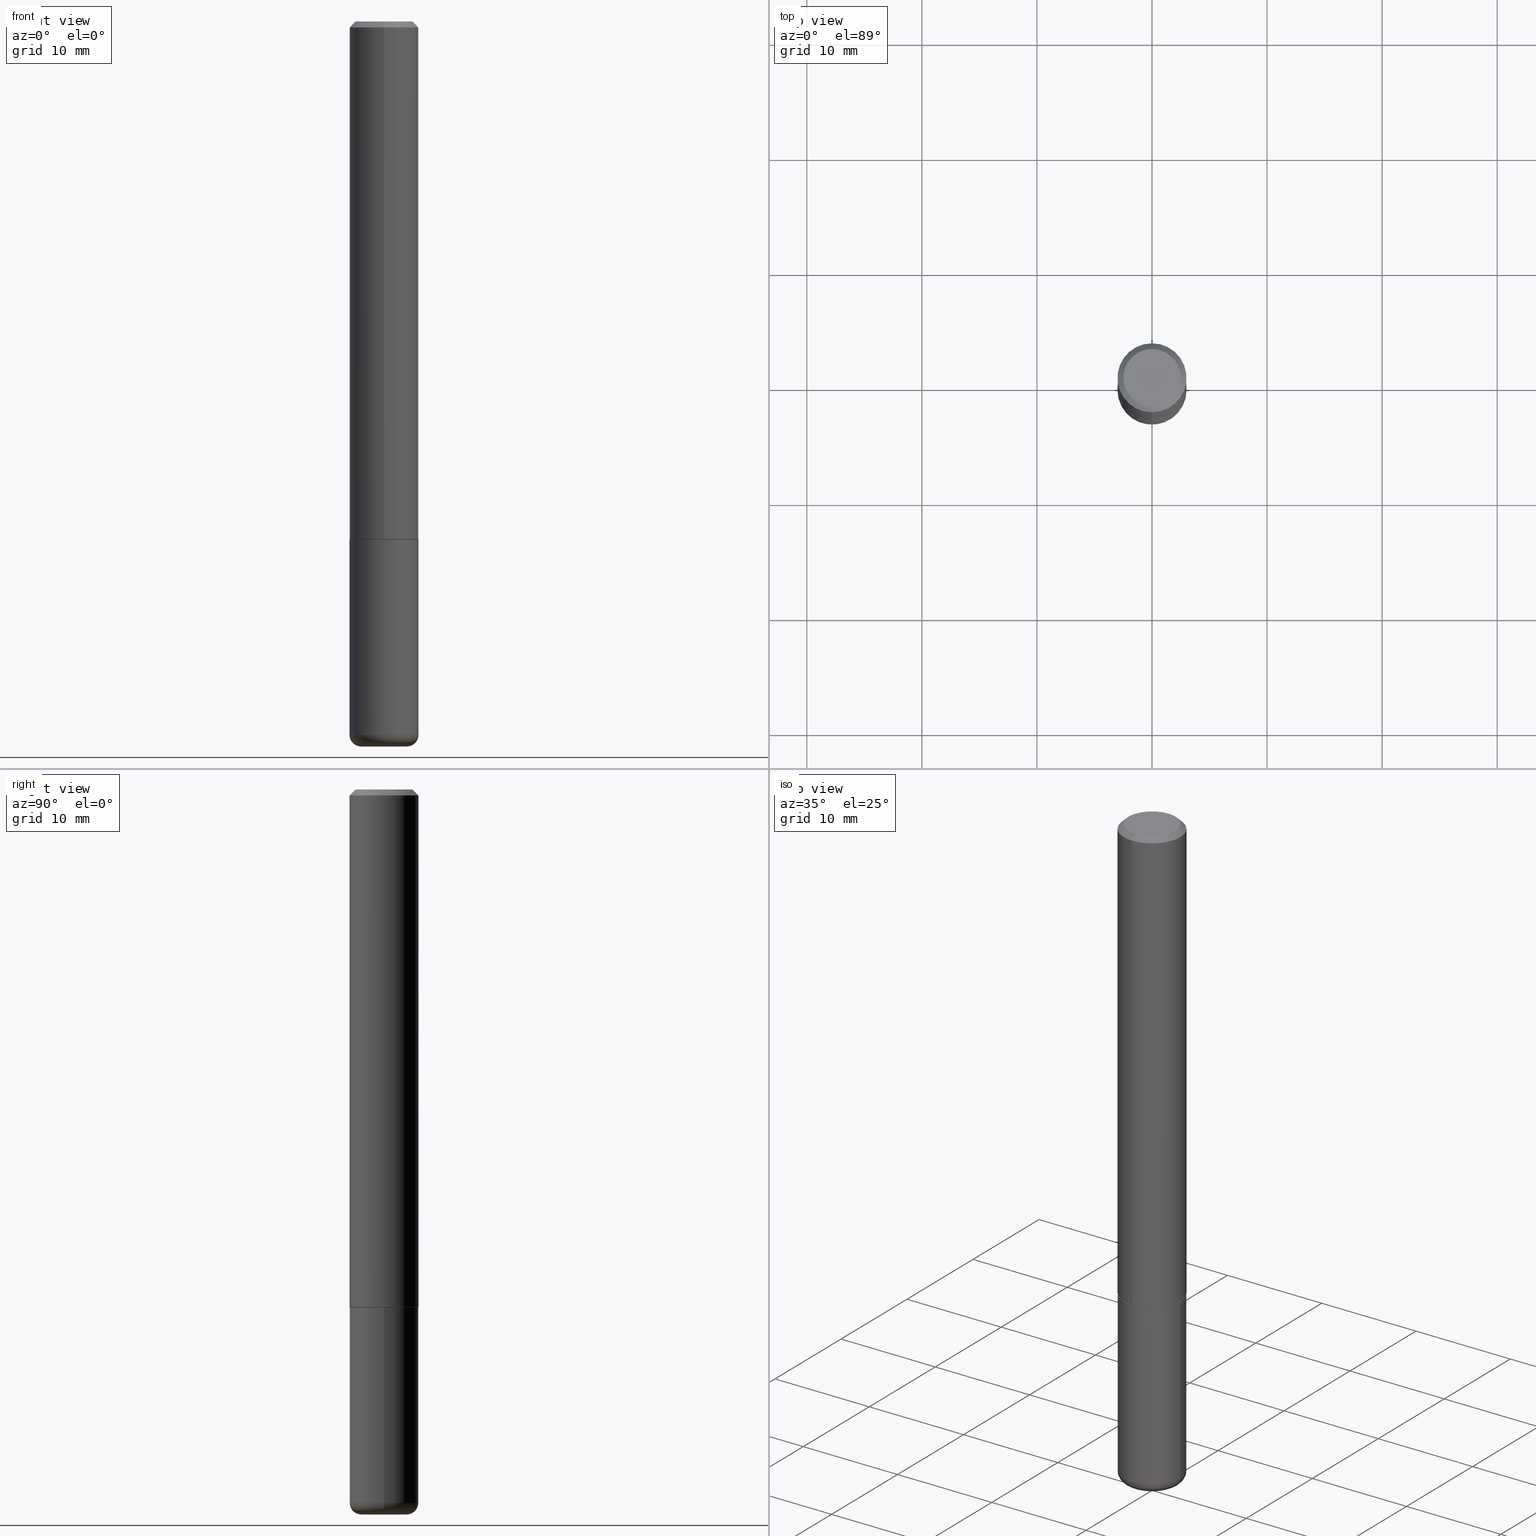
[diagram: canonical four-view strip — front | top / right | iso, engineering-drawing reading convention]
A machine part, canonical four-view strip (front | top / right | iso — engineering-drawing reading convention). The complete STEP part file that produces these views, byte-faithful:
ISO-10303-21;
HEADER;
FILE_DESCRIPTION (( 'STEP AP203' ),
    '1' );
FILE_NAME ('47489.STEP',
    '2024-03-06T02:46:05',
    ( '' ),
    ( '' ),
    'SwSTEP 2.0',
    'SolidWorks 2023',
    '' );
FILE_SCHEMA (( 'CONFIG_CONTROL_DESIGN' ));
ENDSEC;

DATA;
#1 = ORIENTED_EDGE ( 'NONE', *, *, #328, .F. ) ;
#2 = DIRECTION ( 'NONE',  ( -6.982962677686265922E-15, -1.000000000000000000, 3.494674881071397310E-15 ) ) ;
#3 = LOCAL_TIME ( 21, 46, 5.000000000000000000, #287 ) ;
#4 = PERSON_AND_ORGANIZATION_ROLE ( 'creator' ) ;
#5 = CC_DESIGN_PERSON_AND_ORGANIZATION_ASSIGNMENT ( #330, #389, ( #85 ) ) ;
#6 = ORIENTED_EDGE ( 'NONE', *, *, #261, .F. ) ;
#7 = APPROVAL_ROLE ( '' ) ;
#8 = ORIENTED_EDGE ( 'NONE', *, *, #40, .T. ) ;
#9 = CALENDAR_DATE ( 2024, 5, 3 ) ;
#10 = PERSON_AND_ORGANIZATION ( #194, #288 ) ;
#11 = DIRECTION ( 'NONE',  ( -2.445468806185136597E-29, 3.491481338843145583E-15, 1.000000000000000000 ) ) ;
#12 = VERTEX_POINT ( 'NONE', #374 ) ;
#13 = EDGE_CURVE ( 'NONE', #284, #355, #306, .T. ) ;
#14 = CARTESIAN_POINT ( 'NONE',  ( -7.416198335591014190E-16, -0.09809999999999975684, 6.035201542218197439E-16 ) ) ;
#15 = LOCAL_TIME ( 21, 46, 5.000000000000000000, #137 ) ;
#16 = LINE ( 'NONE', #91, #412 ) ;
#17 = APPROVAL ( #231, 'UNSPECIFIED' ) ;
#18 = EDGE_LOOP ( 'NONE', ( #172, #405, #148, #22 ) ) ;
#19 = CARTESIAN_POINT ( 'NONE',  ( 6.850286386810209760E-16, 0.09809999999999975684, -2.124813316387448711E-16 ) ) ;
#20 = CIRCLE ( 'NONE', #371, 0.1180999999999999966 ) ;
#21 = VECTOR ( 'NONE', #81, 39.37007874015748143 ) ;
#22 = ORIENTED_EDGE ( 'NONE', *, *, #60, .F. ) ;
#23 = DIRECTION ( 'NONE',  ( 4.937700262164540942E-15, 0.7071067811865441310, -0.7071067811865509034 ) ) ;
#24 = FACE_OUTER_BOUND ( 'NONE', #18, .T. ) ;
#25 = EDGE_CURVE ( 'NONE', #336, #340, #206, .T. ) ;
#26 = APPLICATION_PROTOCOL_DEFINITION ( 'international standard', 'config_control_design', 1994, #62 ) ;
#27 = DIRECTION ( 'NONE',  ( -4.937700262164969294E-15, -0.7071067811866054154, 0.7071067811864896191 ) ) ;
#28 = AXIS2_PLACEMENT_3D ( 'NONE', #98, #254, #279 ) ;
#29 = LOCAL_TIME ( 21, 46, 5.000000000000000000, #200 ) ;
#30 = CARTESIAN_POINT ( 'NONE',  ( -8.177049295570184665E-16, -0.1171000000000061991, -1.771600000000000064 ) ) ;
#31 = EDGE_LOOP ( 'NONE', ( #299, #144 ) ) ;
#32 =( NAMED_UNIT ( * ) PLANE_ANGLE_UNIT ( ) SI_UNIT ( $, .RADIAN. ) );
#33 = DIRECTION ( 'NONE',  ( -4.851104656540957175E-15, -0.7071067811865490160, -0.7071067811865460184 ) ) ;
#34 = ORIENTED_EDGE ( 'NONE', *, *, #391, .T. ) ;
#35 = PERSON_AND_ORGANIZATION ( #194, #288 ) ;
#36 = DIRECTION ( 'NONE',  ( 6.982962677686265922E-15, 1.000000000000000000, -3.505890868245046092E-15 ) ) ;
#37 = AXIS2_PLACEMENT_3D ( 'NONE', #377, #314, #159 ) ;
#38 = ORIENTED_EDGE ( 'NONE', *, *, #246, .T. ) ;
#39 = APPROVAL_DATE_TIME ( #232, #363 ) ;
#40 = EDGE_CURVE ( 'NONE', #163, #110, #16, .T. ) ;
#41 = ORIENTED_EDGE ( 'NONE', *, *, #347, .T. ) ;
#42 = EDGE_CURVE ( 'NONE', #199, #50, #121, .T. ) ;
#43 = AXIS2_PLACEMENT_3D ( 'NONE', #376, #88, #401 ) ;
#44 = AXIS2_PLACEMENT_3D ( 'NONE', #19, #113, #307 ) ;
#45 = CYLINDRICAL_SURFACE ( 'NONE', #103, 0.1180999999999999966 ) ;
#46 = EDGE_LOOP ( 'NONE', ( #107, #203 ) ) ;
#47 = ORIENTED_EDGE ( 'NONE', *, *, #60, .T. ) ;
#48 = APPLICATION_CONTEXT ( 'configuration controlled 3d designs of mechanical parts and assemblies' ) ;
#49 = DIRECTION ( 'NONE',  ( 1.000000000000000000, -6.982962677686266711E-15, 4.876176775795936353E-29 ) ) ;
#50 = VERTEX_POINT ( 'NONE', #205 ) ;
#51 = FACE_OUTER_BOUND ( 'NONE', #342, .T. ) ;
#52 = ORIENTED_EDGE ( 'NONE', *, *, #183, .T. ) ;
#53 = LINE ( 'NONE', #277, #404 ) ;
#54 = ORIENTED_EDGE ( 'NONE', *, *, #69, .T. ) ;
#55 = AXIS2_PLACEMENT_3D ( 'NONE', #191, #383, #106 ) ;
#56 = ORIENTED_EDGE ( 'NONE', *, *, #250, .T. ) ;
#57 = ADVANCED_FACE ( 'NONE', ( #271 ), #152, .T. ) ;
#58 = DIRECTION ( 'NONE',  ( -6.982962677686265922E-15, -1.000000000000000000, 2.332918867347791121E-15 ) ) ;
#59 = LINE ( 'NONE', #30, #378 ) ;
#60 = EDGE_CURVE ( 'NONE', #336, #355, #310, .T. ) ;
#61 = CARTESIAN_POINT ( 'NONE',  ( 4.325998561852691348E-29, -6.187671344425017014E-15, -1.770600000000000174 ) ) ;
#62 = APPLICATION_CONTEXT ( 'configuration controlled 3d designs of mechanical parts and assemblies' ) ;
#63 = ORIENTED_EDGE ( 'NONE', *, *, #370, .T. ) ;
#64 = LINE ( 'NONE', #387, #202 ) ;
#65 = CARTESIAN_POINT ( 'NONE',  ( 0.1180999999999999966, -7.010196232129265043E-15, -1.771600000000000286 ) ) ;
#66 = PRODUCT_DEFINITION_SHAPE ( 'NONE', 'NONE',  #96 ) ;
#67 = APPROVAL_DATE_TIME ( #260, #17 ) ;
#68 = CARTESIAN_POINT ( 'NONE',  ( 4.886477535132384121E-31, -6.989349762142808870E-17, -0.02000000000000004205 ) ) ;
#69 = EDGE_CURVE ( 'NONE', #355, #110, #20, .T. ) ;
#70 = CALENDAR_DATE ( 2024, 5, 3 ) ;
#71 = VECTOR ( 'NONE', #33, 39.37007874015748143 ) ;
#72 = ORIENTED_EDGE ( 'NONE', *, *, #321, .T. ) ;
#73 = PERSON_AND_ORGANIZATION ( #194, #288 ) ;
#74 = PERSON_AND_ORGANIZATION ( #194, #288 ) ;
#75 = APPROVAL_DATE_TIME ( #395, #341 ) ;
#76 = CIRCLE ( 'NONE', #55, 0.03940000000000005997 ) ;
#77 = EDGE_LOOP ( 'NONE', ( #167, #181 ) ) ;
#78 = CC_DESIGN_PERSON_AND_ORGANIZATION_ASSIGNMENT ( #35, #4, ( #96 ) ) ;
#79 = CARTESIAN_POINT ( 'NONE',  ( 5.969144809017300159E-29, -8.522356799982234543E-15, -2.440900000000000070 ) ) ;
#80 = CARTESIAN_POINT ( 'NONE',  ( -0.07870000000000000606, -7.891964930369505262E-15, -2.480300000000000171 ) ) ;
#81 = DIRECTION ( 'NONE',  ( 5.024295867788490741E-15, 0.7071067811866103003, 0.7071067811864847341 ) ) ;
#82 = DIRECTION ( 'NONE',  ( -6.982962677686265922E-15, -1.000000000000000000, 3.494674881071397705E-15 ) ) ;
#83 = AXIS2_PLACEMENT_3D ( 'NONE', #61, #317, #280 ) ;
#84 = FACE_OUTER_BOUND ( 'NONE', #178, .T. ) ;
#85 = PRODUCT_DEFINITION_FORMATION_WITH_SPECIFIED_SOURCE ( 'ANY', '', #119, .NOT_KNOWN. ) ;
#86 = VERTEX_POINT ( 'NONE', #156 ) ;
#87 = DIRECTION ( 'NONE',  ( 1.000000000000000000, -6.982962677686265133E-15, 0.000000000000000000 ) ) ;
#88 = DIRECTION ( 'NONE',  ( -2.443238767566187138E-29, 3.494674881071396916E-15, 1.000000000000000000 ) ) ;
#89 = MANIFOLD_SOLID_BREP ( 'Body-Move/Copy2[2]', #249 ) ;
#90 = CARTESIAN_POINT ( 'NONE',  ( 7.548582654578847672E-16, 0.09809999999999975684, -8.213505744438662948E-17 ) ) ;
#91 = CARTESIAN_POINT ( 'NONE',  ( -8.246878922347488542E-16, -0.1181000000000001215, 4.127211034545323724E-16 ) ) ;
#92 = ADVANCED_FACE ( 'NONE', ( #402 ), #398, .T. ) ;
#93 = CONICAL_SURFACE ( 'NONE', #212, 0.1180999999999999966, 0.7853981633974469467 ) ;
#94 = AXIS2_PLACEMENT_3D ( 'NONE', #322, #357, #349 ) ;
#95 = CARTESIAN_POINT ( 'NONE',  ( -8.177049295570184665E-16, -0.1171000000000061991, -1.771600000000000064 ) ) ;
#96 = PRODUCT_DEFINITION ( 'UNKNOWN', '', #85, #237 ) ;
#97 = DIRECTION ( 'NONE',  ( -2.445468806185136597E-29, 3.491481338843145583E-15, 1.000000000000000000 ) ) ;
#98 = CARTESIAN_POINT ( 'NONE',  ( 4.325998561852691348E-29, -6.187671344425017014E-15, -1.770600000000000174 ) ) ;
#99 = PLANE ( 'NONE',  #44 ) ;
#100 = VERTEX_POINT ( 'NONE', #80 ) ;
#101 = DIRECTION ( 'NONE',  ( -6.982962677686265922E-15, -1.000000000000000000, 2.332918867347791121E-15 ) ) ;
#102 = DIRECTION ( 'NONE',  ( 1.000000000000000000, -6.982962677686269077E-15, 4.883557194083113462E-29 ) ) ;
#103 = AXIS2_PLACEMENT_3D ( 'NONE', #171, #11, #49 ) ;
#104 = EDGE_LOOP ( 'NONE', ( #318, #52, #8, #302 ) ) ;
#105 = LENGTH_MEASURE_WITH_UNIT ( LENGTH_MEASURE( 0.02539999999999999897 ), #182 );
#106 = DIRECTION ( 'NONE',  ( 1.000000000000000000, -6.982962677686267499E-15, 0.000000000000000000 ) ) ;
#107 = ORIENTED_EDGE ( 'NONE', *, *, #42, .T. ) ;
#108 = DATE_TIME_ROLE ( 'classification_date' ) ;
#109 = ORIENTED_EDGE ( 'NONE', *, *, #234, .F. ) ;
#110 = VERTEX_POINT ( 'NONE', #211 ) ;
#111 = DATE_AND_TIME ( #298, #29 ) ;
#112 = CONICAL_SURFACE ( 'NONE', #198, 0.1180999999999999966, 0.7853981633974469467 ) ;
#113 = DIRECTION ( 'NONE',  ( 2.443238767566186578E-29, -3.494674881071397310E-15, -1.000000000000000000 ) ) ;
#114 = CARTESIAN_POINT ( 'NONE',  ( 0.000000000000000000, 0.000000000000000000, 0.000000000000000000 ) ) ;
#115 = ADVANCED_FACE ( 'NONE', ( #208 ), #278, .T. ) ;
#116 = DIRECTION ( 'NONE',  ( -6.982962677686265922E-15, -1.000000000000000000, 2.332918867347791121E-15 ) ) ;
#117 = DIMENSIONAL_EXPONENTS ( 1.000000000000000000, 0.000000000000000000, 0.000000000000000000, 0.000000000000000000, 0.000000000000000000, 0.000000000000000000, 0.000000000000000000 ) ;
#118 = DIRECTION ( 'NONE',  ( -2.443238767566187138E-29, 3.494674881071396916E-15, 1.000000000000000000 ) ) ;
#119 = PRODUCT ( '47489', '47489', '', ( #227 ) ) ;
#120 = CARTESIAN_POINT ( 'NONE',  ( -6.369341406389364514E-45, 9.110357005365375257E-31, 2.606925483887165818E-16 ) ) ;
#121 = CIRCLE ( 'NONE', #256, 0.1180999999999999966 ) ;
#122 = CIRCLE ( 'NONE', #175, 0.1170999999999999958 ) ;
#123 = SECURITY_CLASSIFICATION ( '', '', #364 ) ;
#124 = DIRECTION ( 'NONE',  ( -2.443238767566187138E-29, 3.494674881071397310E-15, 1.000000000000000000 ) ) ;
#125 = ORIENTED_EDGE ( 'NONE', *, *, #321, .F. ) ;
#126 = DIRECTION ( 'NONE',  ( -2.443238767566187138E-29, 3.494674881071396916E-15, 1.000000000000000000 ) ) ;
#127 = CARTESIAN_POINT ( 'NONE',  ( -0.1181000000000000383, -7.683205829049555557E-15, -2.440900000000000070 ) ) ;
#128 = PRODUCT_RELATED_PRODUCT_CATEGORY ( 'detail', '', ( #119 ) ) ;
#129 = CIRCLE ( 'NONE', #174, 0.03940000000000005997 ) ;
#130 = AXIS2_PLACEMENT_3D ( 'NONE', #304, #339, #151 ) ;
#131 = DIRECTION ( 'NONE',  ( 6.982962677686265922E-15, 1.000000000000000000, -3.505890868245046092E-15 ) ) ;
#132 = CARTESIAN_POINT ( 'NONE',  ( 4.328441800620257960E-29, -6.191166019306087880E-15, -1.771600000000000286 ) ) ;
#133 = DIRECTION ( 'NONE',  ( 2.438088387897960049E-29, -3.491481338843145188E-15, -1.000000000000000000 ) ) ;
#134 = DIRECTION ( 'NONE',  ( -1.000000000000000000, 7.105427357600990815E-15, 0.000000000000000000 ) ) ;
#135 = AXIS2_PLACEMENT_3D ( 'NONE', #409, #283, #58 ) ;
#136 = ORIENTED_EDGE ( 'NONE', *, *, #410, .T. ) ;
#137 = COORDINATED_UNIVERSAL_TIME_OFFSET ( 5, 0, .BEHIND. ) ;
#138 = ORIENTED_EDGE ( 'NONE', *, *, #186, .F. ) ;
#139 = APPLICATION_PROTOCOL_DEFINITION ( 'international standard', 'config_control_design', 1994, #48 ) ;
#140 = CIRCLE ( 'NONE', #37, 0.09809999999999975684 ) ;
#141 = DIRECTION ( 'NONE',  ( 1.000000000000000000, 0.000000000000000000, 0.000000000000000000 ) ) ;
#142 = APPROVAL_STATUS ( 'not_yet_approved' ) ;
#143 = PLANE ( 'NONE',  #362 ) ;
#144 = ORIENTED_EDGE ( 'NONE', *, *, #269, .T. ) ;
#145 = ADVANCED_FACE ( 'NONE', ( #24 ), #93, .T. ) ;
#146 = LOCAL_TIME ( 21, 46, 5.000000000000000000, #170 ) ;
#147 = DIRECTION ( 'NONE',  ( -2.443238767566187138E-29, 3.494674881071396916E-15, 1.000000000000000000 ) ) ;
#148 = ORIENTED_EDGE ( 'NONE', *, *, #234, .T. ) ;
#149 = EDGE_CURVE ( 'NONE', #100, #274, #129, .T. ) ;
#150 = CARTESIAN_POINT ( 'NONE',  ( 4.886477535132384121E-31, -6.989349762142808870E-17, -0.02000000000000004205 ) ) ;
#151 = DIRECTION ( 'NONE',  ( 1.000000000000000000, -6.982962677686269077E-15, 4.883557194083113462E-29 ) ) ;
#152 = CYLINDRICAL_SURFACE ( 'NONE', #43, 0.1181000000000001215 ) ;
#153 = AXIS2_PLACEMENT_3D ( 'NONE', #365, #266, #397 ) ;
#154 = DIRECTION ( 'NONE',  ( -2.445468806185136597E-29, 3.491481338843145583E-15, 1.000000000000000000 ) ) ;
#155 = DIRECTION ( 'NONE',  ( -2.443238767566187138E-29, 3.494674881071397310E-15, 1.000000000000000000 ) ) ;
#156 = CARTESIAN_POINT ( 'NONE',  ( 0.07870000000000000606, -9.209480327466565169E-15, -2.480300000000000171 ) ) ;
#157 = DIRECTION ( 'NONE',  ( -2.443238767566187138E-29, 3.494674881071396916E-15, 1.000000000000000000 ) ) ;
#158 = TOROIDAL_SURFACE ( 'NONE', #346, 0.07870000000000000606, 0.03940000000000005997 ) ;
#159 = DIRECTION ( 'NONE',  ( -6.982962677686265922E-15, -1.000000000000000000, 3.494674881071397705E-15 ) ) ;
#160 = CARTESIAN_POINT ( 'NONE',  ( 4.328441800620257960E-29, -6.191166019306087880E-15, -1.771600000000000286 ) ) ;
#161 = LINE ( 'NONE', #319, #71 ) ;
#162 = CARTESIAN_POINT ( 'NONE',  ( 4.328441800620257960E-29, -6.191166019306087880E-15, -1.771600000000000286 ) ) ;
#163 = VERTEX_POINT ( 'NONE', #195 ) ;
#164 = PERSON_AND_ORGANIZATION ( #194, #288 ) ;
#165 = AXIS2_PLACEMENT_3D ( 'NONE', #216, #157, #222 ) ;
#166 = SHAPE_DEFINITION_REPRESENTATION ( #66, #233 ) ;
#167 = ORIENTED_EDGE ( 'NONE', *, *, #246, .F. ) ;
#168 = DATE_AND_TIME ( #224, #146 ) ;
#169 = CONICAL_SURFACE ( 'NONE', #413, 0.1170999999999999958, 0.7853981633975336552 ) ;
#170 = COORDINATED_UNIVERSAL_TIME_OFFSET ( 5, 0, .BEHIND. ) ;
#171 = CARTESIAN_POINT ( 'NONE',  ( 0.000000000000000000, 0.000000000000000000, 0.000000000000000000 ) ) ;
#172 = ORIENTED_EDGE ( 'NONE', *, *, #269, .F. ) ;
#173 = ADVANCED_FACE ( 'NONE', ( #184 ), #188, .T. ) ;
#174 = AXIS2_PLACEMENT_3D ( 'NONE', #348, #350, #134 ) ;
#175 = AXIS2_PLACEMENT_3D ( 'NONE', #240, #147, #116 ) ;
#176 = DIRECTION ( 'NONE',  ( -2.445468806185136877E-29, 3.491481338843145188E-15, 1.000000000000000000 ) ) ;
#177 = DIRECTION ( 'NONE',  ( -2.443238767566187138E-29, 3.494674881071396916E-15, 1.000000000000000000 ) ) ;
#178 = EDGE_LOOP ( 'NONE', ( #38, #228, #323, #138 ) ) ;
#179 = DIRECTION ( 'NONE',  ( -2.445468806185136597E-29, 3.491481338843145583E-15, 1.000000000000000000 ) ) ;
#180 = AXIS2_PLACEMENT_3D ( 'NONE', #196, #265, #141 ) ;
#181 = ORIENTED_EDGE ( 'NONE', *, *, #410, .F. ) ;
#182 =( LENGTH_UNIT ( ) NAMED_UNIT ( * ) SI_UNIT ( $, .METRE. ) );
#183 = EDGE_CURVE ( 'NONE', #284, #163, #281, .T. ) ;
#184 = FACE_OUTER_BOUND ( 'NONE', #77, .T. ) ;
#185 = DIRECTION ( 'NONE',  ( 2.443238767566187138E-29, -3.494674881071396916E-15, -1.000000000000000000 ) ) ;
#186 = EDGE_CURVE ( 'NONE', #86, #243, #76, .T. ) ;
#187 = CLOSED_SHELL ( 'NONE', ( #115, #381, #334, #326, #218, #173 ) ) ;
#188 = PLANE ( 'NONE',  #345 ) ;
#189 = CC_DESIGN_PERSON_AND_ORGANIZATION_ASSIGNMENT ( #10, #263, ( #123 ) ) ;
#190 = ORIENTED_EDGE ( 'NONE', *, *, #414, .T. ) ;
#191 = CARTESIAN_POINT ( 'NONE',  ( 0.07870000000000000606, -9.071915962716144377E-15, -2.440900000000000070 ) ) ;
#192 = EDGE_LOOP ( 'NONE', ( #41, #63, #244, #262 ) ) ;
#193 = PERSON_AND_ORGANIZATION_ROLE ( 'creator' ) ;
#194 = PERSON ( 'UNSPECIFIED', 'UNSPECIFIED', 'UNSPECIFIED', ('UNSPECIFIED'), ('UNSPECIFIED'), ('UNSPECIFIED') ) ;
#195 = CARTESIAN_POINT ( 'NONE',  ( -8.246878922347063544E-16, -0.1181000000000064221, -1.770599999999999730 ) ) ;
#196 = CARTESIAN_POINT ( 'NONE',  ( 0.000000000000000000, 0.000000000000000000, 0.000000000000000000 ) ) ;
#197 = CC_DESIGN_DATE_AND_TIME_ASSIGNMENT ( #111, #108, ( #123 ) ) ;
#198 = AXIS2_PLACEMENT_3D ( 'NONE', #282, #416, #131 ) ;
#199 = VERTEX_POINT ( 'NONE', #65 ) ;
#200 = COORDINATED_UNIVERSAL_TIME_OFFSET ( 5, 0, .BEHIND. ) ;
#201 = DATE_TIME_ROLE ( 'creation_date' ) ;
#202 = VECTOR ( 'NONE', #311, 39.37007874015748143 ) ;
#203 = ORIENTED_EDGE ( 'NONE', *, *, #328, .T. ) ;
#204 = ORIENTED_EDGE ( 'NONE', *, *, #13, .T. ) ;
#205 = CARTESIAN_POINT ( 'NONE',  ( -0.1180999999999999966, -6.514781599005697070E-15, -1.771600000000000286 ) ) ;
#206 = CIRCLE ( 'NONE', #315, 0.09809999999999975684 ) ;
#207 = APPROVAL_PERSON_ORGANIZATION ( #291, #341, #294 ) ;
#208 = FACE_OUTER_BOUND ( 'NONE', #259, .T. ) ;
#209 = FACE_OUTER_BOUND ( 'NONE', #46, .T. ) ;
#210 = CARTESIAN_POINT ( 'NONE',  ( 0.000000000000000000, 0.000000000000000000, 0.000000000000000000 ) ) ;
#211 = CARTESIAN_POINT ( 'NONE',  ( -8.102248135368172434E-16, -0.1181000000000000660, -0.01999999999999962919 ) ) ;
#212 = AXIS2_PLACEMENT_3D ( 'NONE', #68, #185, #36 ) ;
#213 = EDGE_CURVE ( 'NONE', #163, #284, #325, .T. ) ;
#214 = DIRECTION ( 'NONE',  ( -1.000000000000000000, 6.982962677686265922E-15, -4.876176775795935793E-29 ) ) ;
#215 = MANIFOLD_SOLID_BREP ( 'Body-Move/Copy2[1]', #187 ) ;
#216 = CARTESIAN_POINT ( 'NONE',  ( 4.886477535132384121E-31, -6.989349762142808870E-17, -0.02000000000000004205 ) ) ;
#217 = FACE_OUTER_BOUND ( 'NONE', #407, .T. ) ;
#218 = ADVANCED_FACE ( 'NONE', ( #217 ), #158, .T. ) ;
#219 = ORIENTED_EDGE ( 'NONE', *, *, #186, .T. ) ;
#220 = CARTESIAN_POINT ( 'NONE',  ( 6.065496279980994755E-29, -8.659921164732655335E-15, -2.480300000000000171 ) ) ;
#221 = CIRCLE ( 'NONE', #373, 0.1170999999999999958 ) ;
#222 = DIRECTION ( 'NONE',  ( -6.982962677686265922E-15, -1.000000000000000000, 3.505890868245046092E-15 ) ) ;
#223 = ORIENTED_EDGE ( 'NONE', *, *, #183, .F. ) ;
#224 = CALENDAR_DATE ( 2024, 5, 3 ) ;
#225 = CARTESIAN_POINT ( 'NONE',  ( 0.1181000000000000383, -9.347044692216982806E-15, -2.440900000000000070 ) ) ;
#226 = ORIENTED_EDGE ( 'NONE', *, *, #384, .F. ) ;
#227 = MECHANICAL_CONTEXT ( 'NONE', #62, 'mechanical' ) ;
#228 = ORIENTED_EDGE ( 'NONE', *, *, #149, .T. ) ;
#229 = CIRCLE ( 'NONE', #338, 0.07870000000000000606 ) ;
#230 = ORIENTED_EDGE ( 'NONE', *, *, #347, .F. ) ;
#231 = APPROVAL_STATUS ( 'not_yet_approved' ) ;
#232 = DATE_AND_TIME ( #324, #352 ) ;
#233 = ADVANCED_BREP_SHAPE_REPRESENTATION ( '47489', ( #215, #89, #180 ), #257 ) ;
#234 = EDGE_CURVE ( 'NONE', #110, #355, #393, .T. ) ;
#235 = CC_DESIGN_APPROVAL ( #341, ( #96 ) ) ;
#236 = ADVANCED_FACE ( 'NONE', ( #411 ), #316, .T. ) ;
#237 = DESIGN_CONTEXT ( 'detailed design', #48, 'design' ) ;
#238 = DIRECTION ( 'NONE',  ( -2.445468806185136597E-29, 3.491481338843145583E-15, 1.000000000000000000 ) ) ;
#239 = CARTESIAN_POINT ( 'NONE',  ( 4.332392537037588763E-29, -6.185508339894517569E-15, -1.771600000000000286 ) ) ;
#240 = CARTESIAN_POINT ( 'NONE',  ( 4.328441800620257960E-29, -6.191166019306087880E-15, -1.771600000000000286 ) ) ;
#241 = EDGE_LOOP ( 'NONE', ( #230, #320 ) ) ;
#242 = CARTESIAN_POINT ( 'NONE',  ( 4.332392537037588763E-29, -6.185508339894517569E-15, -1.771600000000000286 ) ) ;
#243 = VERTEX_POINT ( 'NONE', #225 ) ;
#244 = ORIENTED_EDGE ( 'NONE', *, *, #213, .F. ) ;
#245 = ORIENTED_EDGE ( 'NONE', *, *, #213, .T. ) ;
#246 = EDGE_CURVE ( 'NONE', #86, #100, #296, .T. ) ;
#247 =( CONVERSION_BASED_UNIT ( 'INCH', #105 ) LENGTH_UNIT ( ) NAMED_UNIT ( #117 ) );
#248 = FACE_OUTER_BOUND ( 'NONE', #241, .T. ) ;
#249 = CLOSED_SHELL ( 'NONE', ( #399, #57, #145, #289, #92, #236, #292, #313 ) ) ;
#250 = EDGE_CURVE ( 'NONE', #305, #163, #59, .T. ) ;
#251 = CC_DESIGN_SECURITY_CLASSIFICATION ( #123, ( #85 ) ) ;
#252 = CARTESIAN_POINT ( 'NONE',  ( 5.969144809017300159E-29, -8.522356799982234543E-15, -2.440900000000000070 ) ) ;
#253 = PLANE ( 'NONE',  #268 ) ;
#254 = DIRECTION ( 'NONE',  ( -2.443238767566187138E-29, 3.494674881071396916E-15, 1.000000000000000000 ) ) ;
#255 = EDGE_LOOP ( 'NONE', ( #360, #34, #56, #223 ) ) ;
#256 = AXIS2_PLACEMENT_3D ( 'NONE', #239, #179, #335 ) ;
#257 =( GEOMETRIC_REPRESENTATION_CONTEXT ( 3 ) GLOBAL_UNCERTAINTY_ASSIGNED_CONTEXT ( ( #273 ) ) GLOBAL_UNIT_ASSIGNED_CONTEXT ( ( #247, #32, #343 ) ) REPRESENTATION_CONTEXT ( 'NONE', 'WORKASPACE' ) );
#258 = FACE_OUTER_BOUND ( 'NONE', #290, .T. ) ;
#259 = EDGE_LOOP ( 'NONE', ( #390, #190, #333, #226 ) ) ;
#260 = DATE_AND_TIME ( #70, #15 ) ;
#261 = EDGE_CURVE ( 'NONE', #340, #110, #161, .T. ) ;
#262 = ORIENTED_EDGE ( 'NONE', *, *, #250, .F. ) ;
#263 = PERSON_AND_ORGANIZATION_ROLE ( 'classification_officer' ) ;
#264 = CC_DESIGN_DATE_AND_TIME_ASSIGNMENT ( #168, #201, ( #96 ) ) ;
#265 = DIRECTION ( 'NONE',  ( 0.000000000000000000, 0.000000000000000000, 1.000000000000000000 ) ) ;
#266 = DIRECTION ( 'NONE',  ( -2.445468806185136597E-29, 3.491481338843145583E-15, 1.000000000000000000 ) ) ;
#267 = ORIENTED_EDGE ( 'NONE', *, *, #414, .F. ) ;
#268 = AXIS2_PLACEMENT_3D ( 'NONE', #162, #285, #2 ) ;
#269 = EDGE_CURVE ( 'NONE', #340, #336, #140, .T. ) ;
#270 = CC_DESIGN_APPROVAL ( #17, ( #85 ) ) ;
#271 = FACE_OUTER_BOUND ( 'NONE', #286, .T. ) ;
#272 = DIRECTION ( 'NONE',  ( -6.982962677686265922E-15, -1.000000000000000000, 3.505890868245046092E-15 ) ) ;
#273 = UNCERTAINTY_MEASURE_WITH_UNIT (LENGTH_MEASURE( 1.000000000000000082E-05 ), #247, 'distance_accuracy_value', 'NONE');
#274 = VERTEX_POINT ( 'NONE', #127 ) ;
#275 = VECTOR ( 'NONE', #23, 39.37007874015748143 ) ;
#276 = AXIS2_PLACEMENT_3D ( 'NONE', #242, #154, #87 ) ;
#277 = CARTESIAN_POINT ( 'NONE',  ( 0.1180999999999999966, -8.246878922347480654E-16, 5.758764772215000440E-30 ) ) ;
#278 = CYLINDRICAL_SURFACE ( 'NONE', #331, 0.1180999999999999966 ) ;
#279 = DIRECTION ( 'NONE',  ( -6.982962677686265922E-15, -1.000000000000000000, 4.626330217890360659E-15 ) ) ;
#280 = DIRECTION ( 'NONE',  ( -6.982962677686265922E-15, -1.000000000000000000, 4.626330217890360659E-15 ) ) ;
#281 = CIRCLE ( 'NONE', #28, 0.1181000000000002326 ) ;
#282 = CARTESIAN_POINT ( 'NONE',  ( 4.886477535132384121E-31, -6.989349762142808870E-17, -0.02000000000000004205 ) ) ;
#283 = DIRECTION ( 'NONE',  ( -2.443238767566187138E-29, 3.494674881071396916E-15, 1.000000000000000000 ) ) ;
#284 = VERTEX_POINT ( 'NONE', #418 ) ;
#285 = DIRECTION ( 'NONE',  ( -2.443238767566186578E-29, 3.494674881071397310E-15, 1.000000000000000000 ) ) ;
#286 = EDGE_LOOP ( 'NONE', ( #245, #204, #109, #293 ) ) ;
#287 = COORDINATED_UNIVERSAL_TIME_OFFSET ( 5, 0, .BEHIND. ) ;
#288 = ORGANIZATION ( 'UNSPECIFIED', 'UNSPECIFIED', '' ) ;
#289 = ADVANCED_FACE ( 'NONE', ( #258 ), #112, .T. ) ;
#290 = EDGE_LOOP ( 'NONE', ( #6, #327, #47, #54 ) ) ;
#291 = PERSON_AND_ORGANIZATION ( #194, #288 ) ;
#292 = ADVANCED_FACE ( 'NONE', ( #248 ), #253, .F. ) ;
#293 = ORIENTED_EDGE ( 'NONE', *, *, #40, .F. ) ;
#294 = APPROVAL_ROLE ( '' ) ;
#295 = CC_DESIGN_PERSON_AND_ORGANIZATION_ASSIGNMENT ( #164, #193, ( #85 ) ) ;
#296 = CIRCLE ( 'NONE', #94, 0.07870000000000000606 ) ;
#297 = APPROVAL_PERSON_ORGANIZATION ( #356, #17, #394 ) ;
#298 = CALENDAR_DATE ( 2024, 5, 3 ) ;
#299 = ORIENTED_EDGE ( 'NONE', *, *, #25, .T. ) ;
#300 = CARTESIAN_POINT ( 'NONE',  ( 4.332392537037588763E-29, -6.185508339894517569E-15, -1.771600000000000286 ) ) ;
#301 = VECTOR ( 'NONE', #155, 39.37007874015748143 ) ;
#302 = ORIENTED_EDGE ( 'NONE', *, *, #69, .F. ) ;
#303 = CIRCLE ( 'NONE', #396, 0.1180999999999999966 ) ;
#304 = CARTESIAN_POINT ( 'NONE',  ( 5.969144809017300159E-29, -8.522356799982234543E-15, -2.440900000000000070 ) ) ;
#305 = VERTEX_POINT ( 'NONE', #95 ) ;
#306 = LINE ( 'NONE', #368, #301 ) ;
#307 = DIRECTION ( 'NONE',  ( 6.982962677686265922E-15, 1.000000000000000000, -3.494674881071397310E-15 ) ) ;
#308 = CARTESIAN_POINT ( 'NONE',  ( 8.246878922347484598E-16, 0.1180999999999999273, -0.02000000000000045838 ) ) ;
#309 = CIRCLE ( 'NONE', #276, 0.1180999999999999966 ) ;
#310 = LINE ( 'NONE', #308, #275 ) ;
#311 = DIRECTION ( 'NONE',  ( -2.445468806185136877E-29, 3.491481338843145188E-15, 1.000000000000000000 ) ) ;
#312 = DIRECTION ( 'NONE',  ( -2.445468806185136597E-29, 3.491481338843145583E-15, 1.000000000000000000 ) ) ;
#313 = ADVANCED_FACE ( 'NONE', ( #382 ), #99, .F. ) ;
#314 = DIRECTION ( 'NONE',  ( -2.443238767566187138E-29, 3.494674881071396916E-15, 1.000000000000000000 ) ) ;
#315 = AXIS2_PLACEMENT_3D ( 'NONE', #120, #118, #82 ) ;
#316 = CONICAL_SURFACE ( 'NONE', #135, 0.1170999999999999958, 0.7853981633975336552 ) ;
#317 = DIRECTION ( 'NONE',  ( -2.443238767566187138E-29, 3.494674881071396916E-15, 1.000000000000000000 ) ) ;
#318 = ORIENTED_EDGE ( 'NONE', *, *, #13, .F. ) ;
#319 = CARTESIAN_POINT ( 'NONE',  ( -8.102248135368172434E-16, -0.1181000000000000660, -0.01999999999999962919 ) ) ;
#320 = ORIENTED_EDGE ( 'NONE', *, *, #391, .F. ) ;
#321 = EDGE_CURVE ( 'NONE', #274, #243, #303, .T. ) ;
#322 = CARTESIAN_POINT ( 'NONE',  ( 6.065496279980994755E-29, -8.659921164732655335E-15, -2.480300000000000171 ) ) ;
#323 = ORIENTED_EDGE ( 'NONE', *, *, #337, .F. ) ;
#324 = CALENDAR_DATE ( 2024, 5, 3 ) ;
#325 = CIRCLE ( 'NONE', #83, 0.1181000000000002326 ) ;
#326 = ADVANCED_FACE ( 'NONE', ( #51 ), #45, .T. ) ;
#327 = ORIENTED_EDGE ( 'NONE', *, *, #25, .F. ) ;
#328 = EDGE_CURVE ( 'NONE', #50, #199, #309, .T. ) ;
#329 = PERSON_AND_ORGANIZATION_ROLE ( 'design_owner' ) ;
#330 = PERSON_AND_ORGANIZATION ( #194, #288 ) ;
#331 = AXIS2_PLACEMENT_3D ( 'NONE', #210, #344, #354 ) ;
#332 = CC_DESIGN_APPROVAL ( #363, ( #123 ) ) ;
#333 = ORIENTED_EDGE ( 'NONE', *, *, #42, .F. ) ;
#334 = ADVANCED_FACE ( 'NONE', ( #209 ), #143, .F. ) ;
#335 = DIRECTION ( 'NONE',  ( 1.000000000000000000, -6.982962677686265133E-15, 0.000000000000000000 ) ) ;
#336 = VERTEX_POINT ( 'NONE', #90 ) ;
#337 = EDGE_CURVE ( 'NONE', #243, #274, #385, .T. ) ;
#338 = AXIS2_PLACEMENT_3D ( 'NONE', #220, #97, #353 ) ;
#339 = DIRECTION ( 'NONE',  ( -2.445468806185136597E-29, 3.491481338843145583E-15, 1.000000000000000000 ) ) ;
#340 = VERTEX_POINT ( 'NONE', #14 ) ;
#341 = APPROVAL ( #142, 'UNSPECIFIED' ) ;
#342 = EDGE_LOOP ( 'NONE', ( #267, #72, #388, #1 ) ) ;
#343 =( NAMED_UNIT ( * ) SI_UNIT ( $, .STERADIAN. ) SOLID_ANGLE_UNIT ( ) );
#344 = DIRECTION ( 'NONE',  ( -2.445468806185136597E-29, 3.491481338843145583E-15, 1.000000000000000000 ) ) ;
#345 = AXIS2_PLACEMENT_3D ( 'NONE', #380, #133, #214 ) ;
#346 = AXIS2_PLACEMENT_3D ( 'NONE', #252, #312, #102 ) ;
#347 = EDGE_CURVE ( 'NONE', #305, #12, #122, .T. ) ;
#348 = CARTESIAN_POINT ( 'NONE',  ( -0.07870000000000000606, -7.963159666939035753E-15, -2.440900000000000070 ) ) ;
#349 = DIRECTION ( 'NONE',  ( 1.000000000000000000, -6.982962677686269077E-15, 0.000000000000000000 ) ) ;
#350 = DIRECTION ( 'NONE',  ( 7.105427357601001859E-15, 1.000000000000000000, -3.491481338843145583E-15 ) ) ;
#351 = TOROIDAL_SURFACE ( 'NONE', #130, 0.07870000000000000606, 0.03940000000000005997 ) ;
#352 = LOCAL_TIME ( 21, 46, 5.000000000000000000, #359 ) ;
#353 = DIRECTION ( 'NONE',  ( 1.000000000000000000, -6.982962677686269077E-15, 0.000000000000000000 ) ) ;
#354 = DIRECTION ( 'NONE',  ( 1.000000000000000000, -6.982962677686266711E-15, 4.876176775795936353E-29 ) ) ;
#355 = VERTEX_POINT ( 'NONE', #400 ) ;
#356 = PERSON_AND_ORGANIZATION ( #194, #288 ) ;
#357 = DIRECTION ( 'NONE',  ( -2.445468806185136597E-29, 3.491481338843145583E-15, 1.000000000000000000 ) ) ;
#358 = ORIENTED_EDGE ( 'NONE', *, *, #149, .F. ) ;
#359 = COORDINATED_UNIVERSAL_TIME_OFFSET ( 5, 0, .BEHIND. ) ;
#360 = ORIENTED_EDGE ( 'NONE', *, *, #370, .F. ) ;
#361 = AXIS2_PLACEMENT_3D ( 'NONE', #114, #366, #372 ) ;
#362 = AXIS2_PLACEMENT_3D ( 'NONE', #300, #406, #369 ) ;
#363 = APPROVAL ( #392, 'UNSPECIFIED' ) ;
#364 = SECURITY_CLASSIFICATION_LEVEL ( 'unclassified' ) ;
#365 = CARTESIAN_POINT ( 'NONE',  ( 5.969144809017300159E-29, -8.522356799982234543E-15, -2.440900000000000070 ) ) ;
#366 = DIRECTION ( 'NONE',  ( -2.443238767566187138E-29, 3.494674881071396916E-15, 1.000000000000000000 ) ) ;
#367 = LINE ( 'NONE', #403, #21 ) ;
#368 = CARTESIAN_POINT ( 'NONE',  ( 8.391509709326790846E-16, 0.1181000000000001215, -4.127211034545323724E-16 ) ) ;
#369 = DIRECTION ( 'NONE',  ( -1.000000000000000000, 6.982962677686265922E-15, -4.876176775795935793E-29 ) ) ;
#370 = EDGE_CURVE ( 'NONE', #12, #284, #367, .T. ) ;
#371 = AXIS2_PLACEMENT_3D ( 'NONE', #150, #177, #272 ) ;
#372 = DIRECTION ( 'NONE',  ( -6.982962677686265922E-15, -1.000000000000000000, 3.494674881071396522E-15 ) ) ;
#373 = AXIS2_PLACEMENT_3D ( 'NONE', #160, #126, #417 ) ;
#374 = CARTESIAN_POINT ( 'NONE',  ( 8.355982572539216720E-16, 0.1170999999999937924, -1.771600000000000508 ) ) ;
#375 = DIRECTION ( 'NONE',  ( 1.000000000000000000, -6.982962677686273021E-15, 0.000000000000000000 ) ) ;
#376 = CARTESIAN_POINT ( 'NONE',  ( 0.000000000000000000, 0.000000000000000000, 0.000000000000000000 ) ) ;
#377 = CARTESIAN_POINT ( 'NONE',  ( -6.369341406389364514E-45, 9.110357005365375257E-31, 2.606925483887165818E-16 ) ) ;
#378 = VECTOR ( 'NONE', #27, 39.37007874015748143 ) ;
#379 = CC_DESIGN_PERSON_AND_ORGANIZATION_ASSIGNMENT ( #74, #329, ( #119 ) ) ;
#380 = CARTESIAN_POINT ( 'NONE',  ( 6.065496279980994755E-29, -8.659921164732655335E-15, -2.480300000000000171 ) ) ;
#381 = ADVANCED_FACE ( 'NONE', ( #84 ), #351, .T. ) ;
#382 = FACE_OUTER_BOUND ( 'NONE', #31, .T. ) ;
#383 = DIRECTION ( 'NONE',  ( -6.982962677686266711E-15, -1.000000000000000000, 3.491481338843145583E-15 ) ) ;
#384 = EDGE_CURVE ( 'NONE', #243, #199, #53, .T. ) ;
#385 = CIRCLE ( 'NONE', #153, 0.1180999999999999966 ) ;
#386 = APPROVAL_PERSON_ORGANIZATION ( #73, #363, #7 ) ;
#387 = CARTESIAN_POINT ( 'NONE',  ( -0.1180999999999999966, 8.391509709326782957E-16, -5.809262341591043784E-30 ) ) ;
#388 = ORIENTED_EDGE ( 'NONE', *, *, #384, .T. ) ;
#389 = PERSON_AND_ORGANIZATION_ROLE ( 'design_supplier' ) ;
#390 = ORIENTED_EDGE ( 'NONE', *, *, #337, .T. ) ;
#391 = EDGE_CURVE ( 'NONE', #12, #305, #221, .T. ) ;
#392 = APPROVAL_STATUS ( 'not_yet_approved' ) ;
#393 = CIRCLE ( 'NONE', #165, 0.1180999999999999966 ) ;
#394 = APPROVAL_ROLE ( '' ) ;
#395 = DATE_AND_TIME ( #9, #3 ) ;
#396 = AXIS2_PLACEMENT_3D ( 'NONE', #79, #238, #375 ) ;
#397 = DIRECTION ( 'NONE',  ( 1.000000000000000000, -6.982962677686273021E-15, 0.000000000000000000 ) ) ;
#398 = CYLINDRICAL_SURFACE ( 'NONE', #361, 0.1181000000000001215 ) ;
#399 = ADVANCED_FACE ( 'NONE', ( #415 ), #169, .T. ) ;
#400 = CARTESIAN_POINT ( 'NONE',  ( 8.246878922347484598E-16, 0.1180999999999999273, -0.02000000000000045838 ) ) ;
#401 = DIRECTION ( 'NONE',  ( -6.982962677686265922E-15, -1.000000000000000000, 3.494674881071396522E-15 ) ) ;
#402 = FACE_OUTER_BOUND ( 'NONE', #104, .T. ) ;
#403 = CARTESIAN_POINT ( 'NONE',  ( 8.320455435751204777E-16, 0.1170999999999937924, -1.771600000000000508 ) ) ;
#404 = VECTOR ( 'NONE', #176, 39.37007874015748143 ) ;
#405 = ORIENTED_EDGE ( 'NONE', *, *, #261, .T. ) ;
#406 = DIRECTION ( 'NONE',  ( 2.438088387897960049E-29, -3.491481338843145188E-15, -1.000000000000000000 ) ) ;
#407 = EDGE_LOOP ( 'NONE', ( #358, #136, #219, #125 ) ) ;
#408 = DIRECTION ( 'NONE',  ( -2.443238767566187138E-29, 3.494674881071396916E-15, 1.000000000000000000 ) ) ;
#409 = CARTESIAN_POINT ( 'NONE',  ( 4.328441800620257960E-29, -6.191166019306087880E-15, -1.771600000000000286 ) ) ;
#410 = EDGE_CURVE ( 'NONE', #100, #86, #229, .T. ) ;
#411 = FACE_OUTER_BOUND ( 'NONE', #255, .T. ) ;
#412 = VECTOR ( 'NONE', #124, 39.37007874015748143 ) ;
#413 = AXIS2_PLACEMENT_3D ( 'NONE', #132, #408, #101 ) ;
#414 = EDGE_CURVE ( 'NONE', #274, #50, #64, .T. ) ;
#415 = FACE_OUTER_BOUND ( 'NONE', #192, .T. ) ;
#416 = DIRECTION ( 'NONE',  ( 2.443238767566187138E-29, -3.494674881071396916E-15, -1.000000000000000000 ) ) ;
#417 = DIRECTION ( 'NONE',  ( -6.982962677686265922E-15, -1.000000000000000000, 2.332918867347791121E-15 ) ) ;
#418 = CARTESIAN_POINT ( 'NONE',  ( 8.391509709327014685E-16, 0.1180999999999940708, -1.770600000000000840 ) ) ;
ENDSEC;
END-ISO-10303-21;
